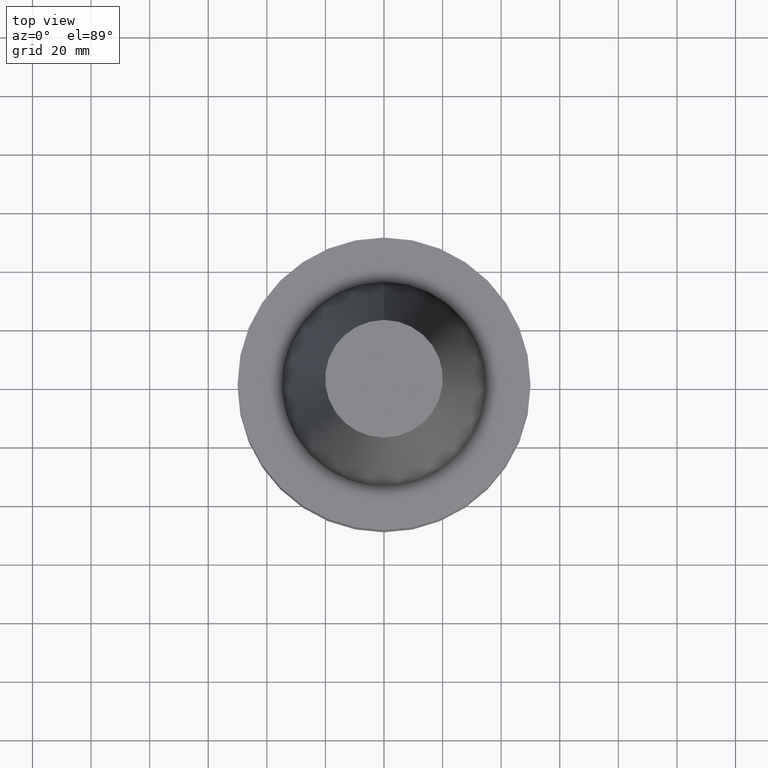
[diagram: clean part render]
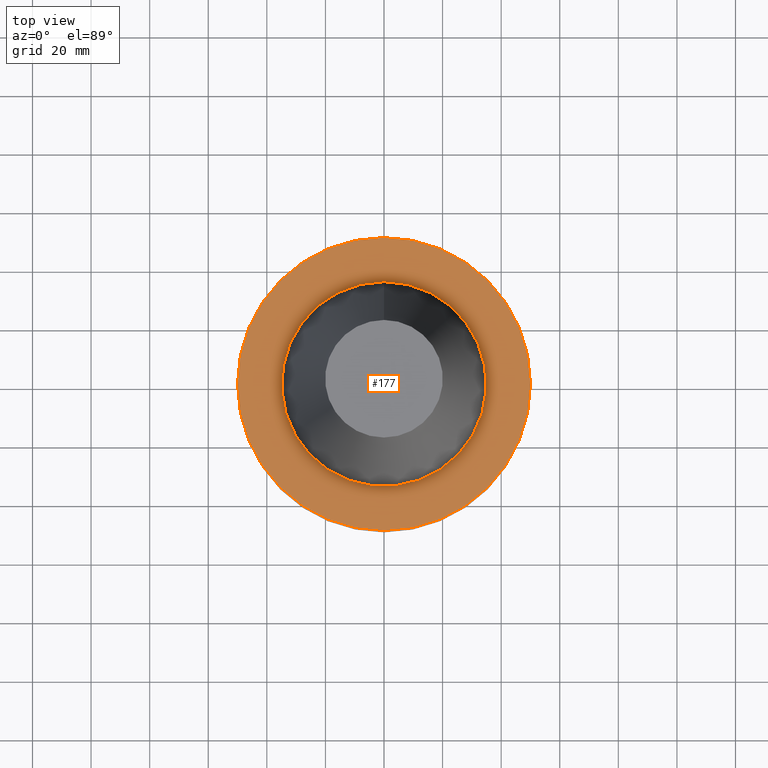
[diagram: same view with one face highlighted and labeled with its STEP entity id]
A machine part, top view. The second image highlights one B-rep face of the part: STEP entity #177.
In plain terms, the highlighted planar face has unit normal (-0, -0, 1).
Its self-contained STEP definition (entity closure, byte-faithful):
#121=EDGE_CURVE('Unnamed[1]',#278,#278,#279,.T.);
#172=EDGE_CURVE('Unnamed[1]',#358,#358,#359,.T.);
#177=ADVANCED_FACE('Unnamed[1]',(#365,#366),#367,.T.);
#278=VERTEX_POINT('',#478);
#279=CIRCLE('',#479,34.925);
#358=VERTEX_POINT('',#579);
#359=CIRCLE('',#580,50.0);
#365=FACE_OUTER_BOUND('',#588,.T.);
#366=FACE_BOUND('',#589,.T.);
#367=PLANE('',#590);
#478=CARTESIAN_POINT('',(9.18485099360511E-017,34.925,-1.5));
#479=AXIS2_PLACEMENT_3D('',#685,#686,#687);
#579=CARTESIAN_POINT('',(9.18485099360509E-017,50.0,-1.49999999999999));
#580=AXIS2_PLACEMENT_3D('',#774,#775,#776);
#588=EDGE_LOOP('',(#781));
#589=EDGE_LOOP('',(#782));
#590=AXIS2_PLACEMENT_3D('',#783,#784,#785);
#685=CARTESIAN_POINT('',(9.18485099360515E-017,1.83697019872103E-016,-1.5));
#686=DIRECTION('',(6.12323399573677E-017,1.22464679914705E-016,-1.0));
#687=DIRECTION('',(-1.23259516440793E-032,1.0,1.22464679914705E-016));
#774=CARTESIAN_POINT('',(9.18485099360515E-017,1.83697019872103E-016,-1.5));
#775=DIRECTION('',(6.12323399573677E-017,1.22464679914736E-016,-1.0));
#776=DIRECTION('',(-1.23259516440783E-032,1.0,1.22464679914736E-016));
#781=ORIENTED_EDGE('',*,*,#172,.F.);
#782=ORIENTED_EDGE('',*,*,#121,.T.);
#783=CARTESIAN_POINT('',(9.1848509936051E-017,42.4625,-1.49999999999999));
#784=DIRECTION('',(-6.12323399573677E-017,-1.22464679914735E-016,1.0));
#785=DIRECTION('',(1.23259516440783E-032,-1.0,-1.22464679914735E-016));